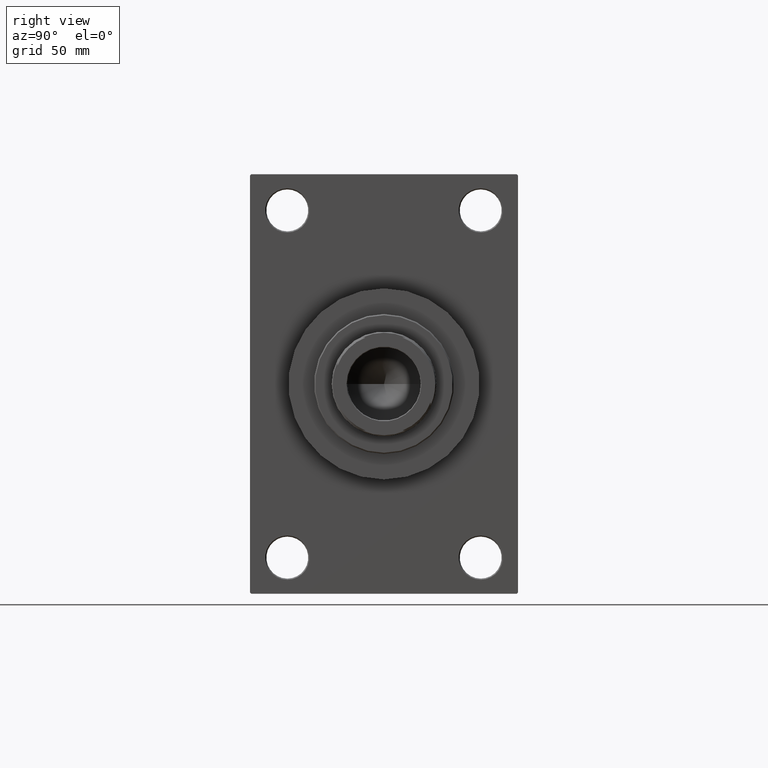
[diagram: clean part render]
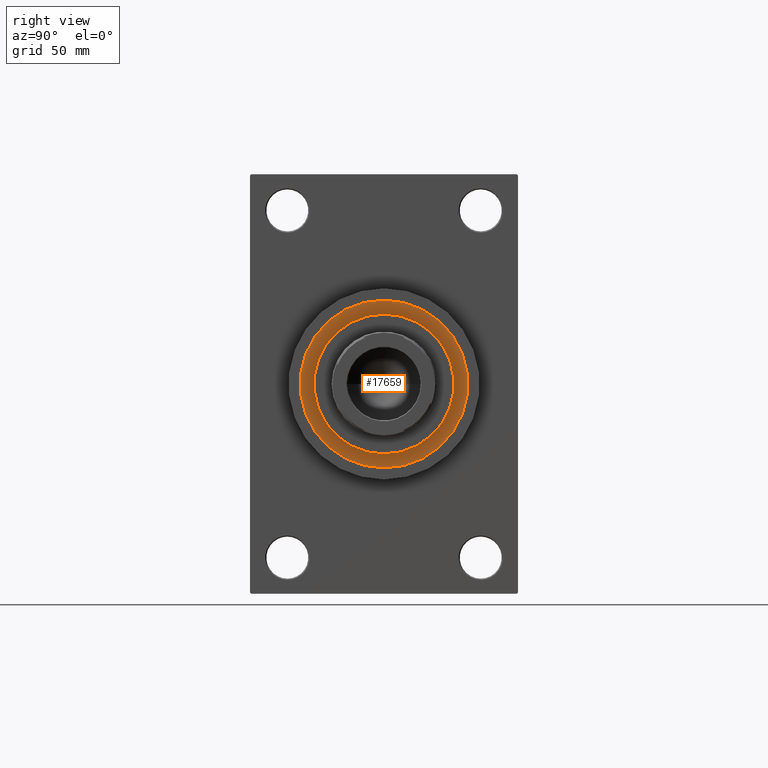
[diagram: same view with one face highlighted and labeled with its STEP entity id]
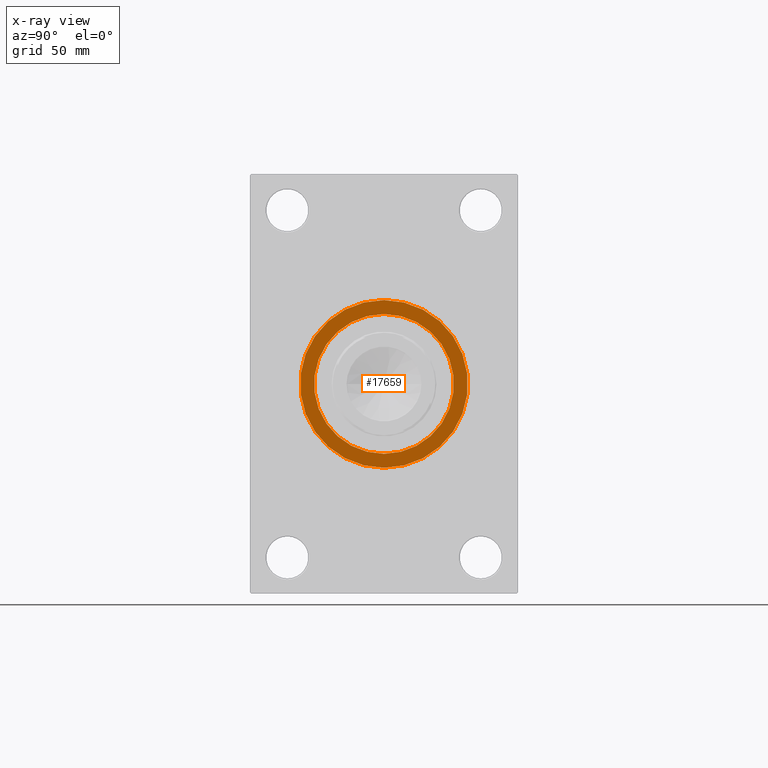
[diagram: x-ray of the same camera — body ghosted, the highlighted face saturated]
A machine part, right view. The second image highlights one B-rep face of the part: STEP entity #17659.
The next image is the same camera in x-ray: the body ghosted, the highlighted face saturated — about 0% of this face is hidden behind the body in this view.
In plain terms, the highlighted planar face has unit normal (1, -0, -0).
Its self-contained STEP definition (entity closure, byte-faithful):
#485 = EDGE_CURVE ( 'NONE', #6999, #3376, #30010, .T. ) ;
#1184 = VERTEX_POINT ( 'NONE', #10709 ) ;
#3376 = VERTEX_POINT ( 'NONE', #12937 ) ;
#5227 = EDGE_CURVE ( 'NONE', #1184, #25013, #5925, .T. ) ;
#5925 = CIRCLE ( 'NONE', #39784, 36.00000000000000000 ) ;
#6649 = AXIS2_PLACEMENT_3D ( 'NONE', #25491, #44033, #28618 ) ;
#6999 = VERTEX_POINT ( 'NONE', #19950 ) ;
#10566 = DIRECTION ( 'NONE',  ( 1.000000000000000000, 0.000000000000000000, -0.000000000000000000 ) ) ;
#10709 = CARTESIAN_POINT ( 'NONE',  ( 36.00000000000000000, 4.408728476930470856E-15, 43.25999999999999801 ) ) ;
#10923 = AXIS2_PLACEMENT_3D ( 'NONE', #25034, #39721, #10566 ) ;
#11062 = CARTESIAN_POINT ( 'NONE',  ( 0.000000000000000000, 0.000000000000000000, 43.25999999999999801 ) ) ;
#12937 = CARTESIAN_POINT ( 'NONE',  ( 30.00000000000000000, 3.673940397442059178E-15, 43.25999999999999801 ) ) ;
#17462 = CIRCLE ( 'NONE', #40590, 36.00000000000000000 ) ;
#17659 = ADVANCED_FACE ( 'NONE', ( #43336, #28638 ), #43576, .T. ) ;
#19013 = EDGE_LOOP ( 'NONE', ( #38281, #38111 ) ) ;
#19086 = CARTESIAN_POINT ( 'NONE',  ( -36.00000000000000000, 0.000000000000000000, 43.25999999999999801 ) ) ;
#19950 = CARTESIAN_POINT ( 'NONE',  ( -30.00000000000000000, 0.000000000000000000, 43.25999999999999801 ) ) ;
#24899 = DIRECTION ( 'NONE',  ( 1.000000000000000000, 0.000000000000000000, 0.000000000000000000 ) ) ;
#25013 = VERTEX_POINT ( 'NONE', #19086 ) ;
#25034 = CARTESIAN_POINT ( 'NONE',  ( 0.000000000000000000, 0.000000000000000000, 43.25999999999999801 ) ) ;
#25491 = CARTESIAN_POINT ( 'NONE',  ( 0.000000000000000000, 0.000000000000000000, 43.25999999999999801 ) ) ;
#25627 = DIRECTION ( 'NONE',  ( 0.000000000000000000, 0.000000000000000000, 1.000000000000000000 ) ) ;
#25766 = DIRECTION ( 'NONE',  ( 0.000000000000000000, 0.000000000000000000, 1.000000000000000000 ) ) ;
#28027 = CARTESIAN_POINT ( 'NONE',  ( 0.000000000000000000, 0.000000000000000000, 43.25999999999999801 ) ) ;
#28201 = ORIENTED_EDGE ( 'NONE', *, *, #485, .F. ) ;
#28618 = DIRECTION ( 'NONE',  ( 1.000000000000000000, 0.000000000000000000, 0.000000000000000000 ) ) ;
#28638 = FACE_OUTER_BOUND ( 'NONE', #19013, .T. ) ;
#28993 = CARTESIAN_POINT ( 'NONE',  ( 0.000000000000000000, 0.000000000000000000, 43.25999999999999801 ) ) ;
#29424 = EDGE_CURVE ( 'NONE', #3376, #6999, #33597, .T. ) ;
#30010 = CIRCLE ( 'NONE', #43108, 30.00000000000000000 ) ;
#33597 = CIRCLE ( 'NONE', #6649, 30.00000000000000000 ) ;
#38111 = ORIENTED_EDGE ( 'NONE', *, *, #5227, .T. ) ;
#38281 = ORIENTED_EDGE ( 'NONE', *, *, #43668, .T. ) ;
#39721 = DIRECTION ( 'NONE',  ( 0.000000000000000000, 0.000000000000000000, 1.000000000000000000 ) ) ;
#39784 = AXIS2_PLACEMENT_3D ( 'NONE', #28993, #25627, #40323 ) ;
#40323 = DIRECTION ( 'NONE',  ( 1.000000000000000000, 0.000000000000000000, 0.000000000000000000 ) ) ;
#40464 = DIRECTION ( 'NONE',  ( 1.000000000000000000, 0.000000000000000000, 0.000000000000000000 ) ) ;
#40590 = AXIS2_PLACEMENT_3D ( 'NONE', #28027, #42723, #24899 ) ;
#42723 = DIRECTION ( 'NONE',  ( 0.000000000000000000, 0.000000000000000000, 1.000000000000000000 ) ) ;
#43108 = AXIS2_PLACEMENT_3D ( 'NONE', #11062, #25766, #40464 ) ;
#43336 = FACE_BOUND ( 'NONE', #43556, .T. ) ;
#43556 = EDGE_LOOP ( 'NONE', ( #28201, #43975 ) ) ;
#43576 = PLANE ( 'NONE',  #10923 ) ;
#43668 = EDGE_CURVE ( 'NONE', #25013, #1184, #17462, .T. ) ;
#43975 = ORIENTED_EDGE ( 'NONE', *, *, #29424, .F. ) ;
#44033 = DIRECTION ( 'NONE',  ( 0.000000000000000000, 0.000000000000000000, 1.000000000000000000 ) ) ;